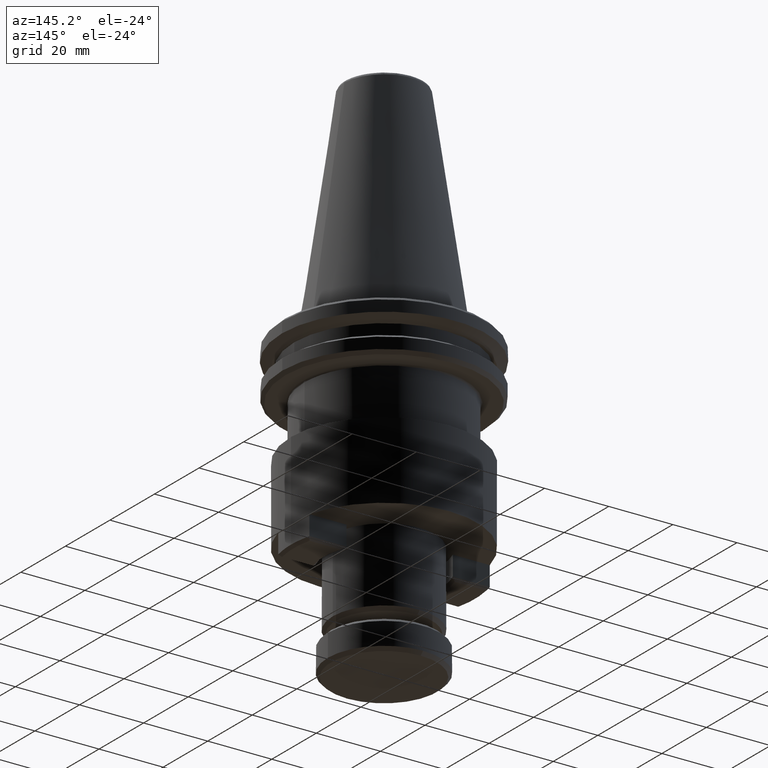
[diagram: clean part render]
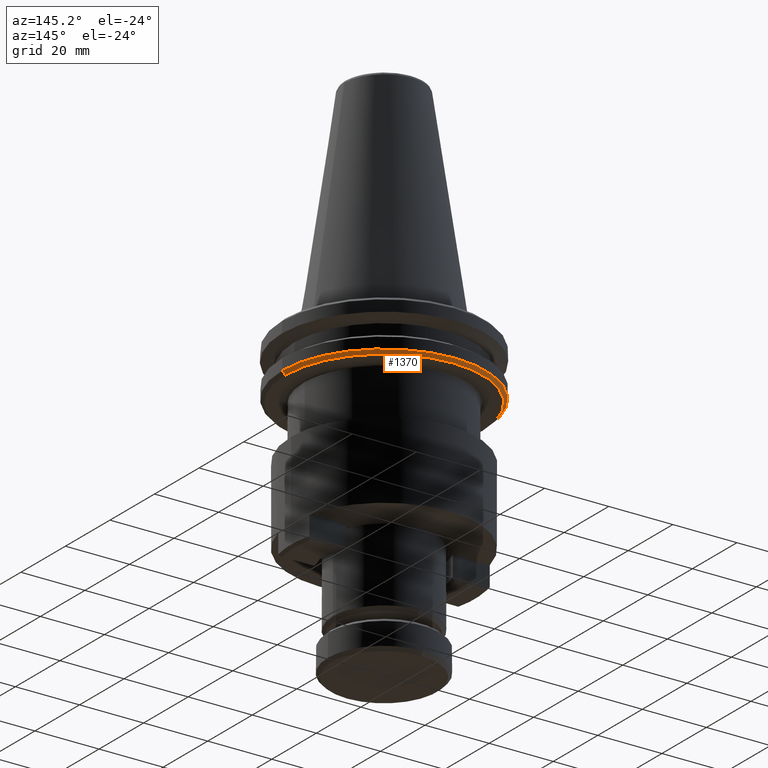
[diagram: same view with one face highlighted and labeled with its STEP entity id]
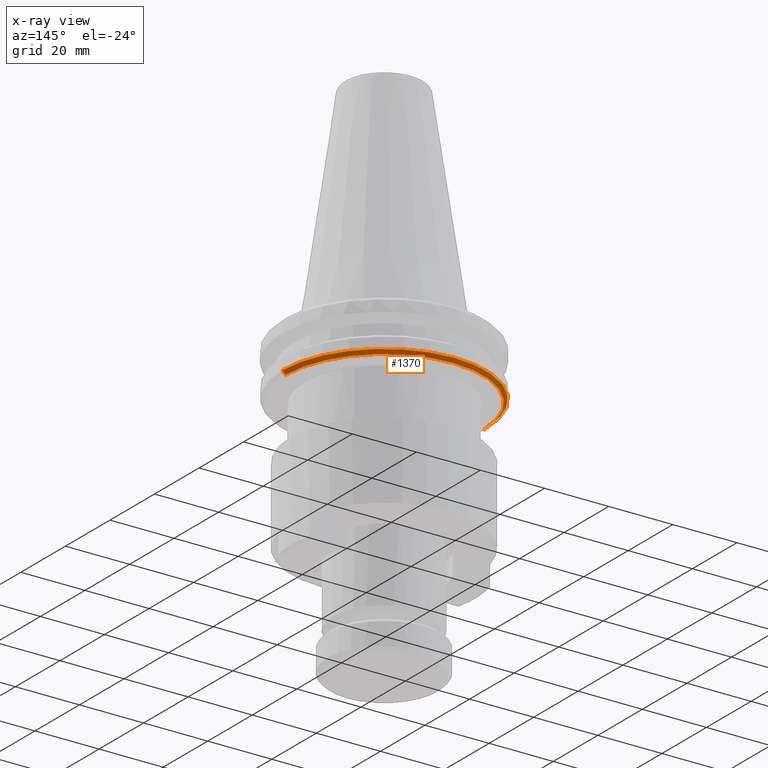
[diagram: x-ray of the same camera — body ghosted, the highlighted face saturated]
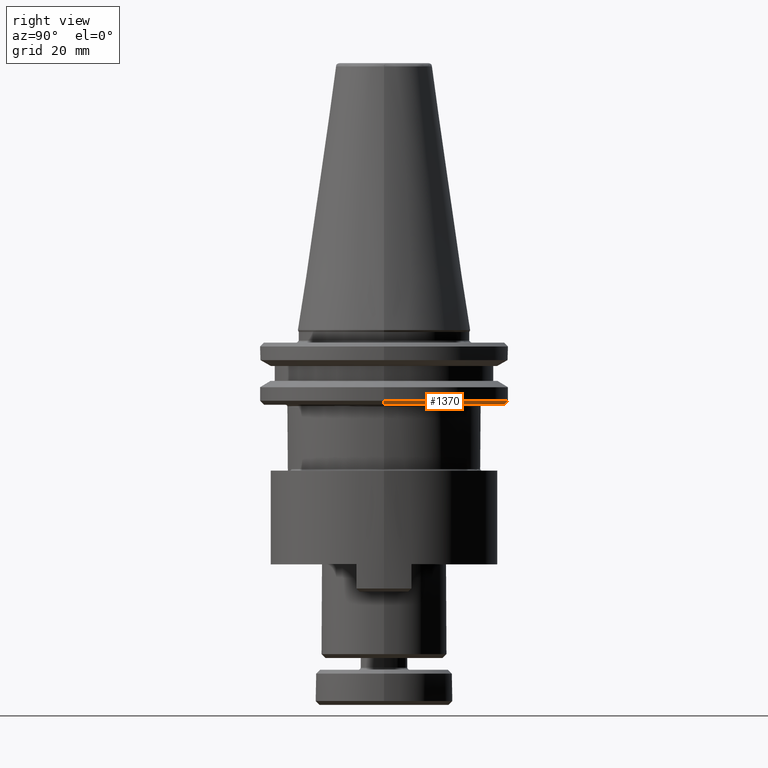
[diagram: same view with one face highlighted and labeled with its STEP entity id]
A machine part, auxiliary view. The second image highlights one B-rep face of the part: STEP entity #1370.
The next image is the same camera in x-ray: the body ghosted, the highlighted face saturated — about 0% of this face is hidden behind the body in this view.
A second angle (right view) of the same face is appended — the face is thin or edge-on in the first view.
In plain terms, the highlighted conical surface has half-angle 45 deg.
Its self-contained STEP definition (entity closure, byte-faithful):
#39 = EDGE_CURVE ( 'NONE', #808, #1851, #2872, .T. ) ;
#43 = DIRECTION ( 'NONE',  ( -0.0000000000000000000, 0.0000000000000000000, -1.000000000000000000 ) ) ;
#115 = EDGE_CURVE ( 'NONE', #1096, #2652, #2829, .T. ) ;
#287 = AXIS2_PLACEMENT_3D ( 'NONE', #559, #824, #1830 ) ;
#301 = AXIS2_PLACEMENT_3D ( 'NONE', #2291, #1673, #2648 ) ;
#389 = CIRCLE ( 'NONE', #2859, 30.74999999850318100 ) ;
#486 = CARTESIAN_POINT ( 'NONE',  ( 51.54877266015199700, 93.68607934060428000, 76.66398860121597600 ) ) ;
#559 = CARTESIAN_POINT ( 'NONE',  ( 82.29877265865518200, 93.68607934060428000, 77.66398860271280600 ) ) ;
#808 = VERTEX_POINT ( 'NONE', #486 ) ;
#815 = DIRECTION ( 'NONE',  ( 0.7071067811865463500, 0.0000000000000000000, 0.7071067811865487900 ) ) ;
#824 = DIRECTION ( 'NONE',  ( -5.463695987328526400E-017, 0.0000000000000000000, 1.000000000000000000 ) ) ;
#841 = EDGE_LOOP ( 'NONE', ( #1573, #1983, #1569, #2923 ) ) ;
#965 = EDGE_CURVE ( 'NONE', #2652, #1851, #1805, .T. ) ;
#1096 = VERTEX_POINT ( 'NONE', #2757 ) ;
#1359 = CONICAL_SURFACE ( 'NONE', #301, 31.75000000077188400, 0.7853981633974466100 ) ;
#1370 = ADVANCED_FACE ( 'NONE', ( #1388 ), #1359, .T. ) ;
#1388 = FACE_OUTER_BOUND ( 'NONE', #841, .T. ) ;
#1569 = ORIENTED_EDGE ( 'NONE', *, *, #965, .F. ) ;
#1573 = ORIENTED_EDGE ( 'NONE', *, *, #2500, .F. ) ;
#1660 = CARTESIAN_POINT ( 'NONE',  ( 82.29877265865518200, 93.68607934060428000, 76.66398860121597600 ) ) ;
#1673 = DIRECTION ( 'NONE',  ( 0.0000000000000000000, -0.0000000000000000000, 1.000000000000000000 ) ) ;
#1805 = CIRCLE ( 'NONE', #287, 31.75000000000000000 ) ;
#1830 = DIRECTION ( 'NONE',  ( 1.000000000000000000, 0.0000000000000000000, 0.0000000000000000000 ) ) ;
#1851 = VERTEX_POINT ( 'NONE', #3143 ) ;
#1914 = DIRECTION ( 'NONE',  ( 1.000000000000000000, 0.0000000000000000000, 0.0000000000000000000 ) ) ;
#1983 = ORIENTED_EDGE ( 'NONE', *, *, #39, .T. ) ;
#2170 = CARTESIAN_POINT ( 'NONE',  ( 50.54877265788329100, 93.68607934060428000, 77.66398860348469700 ) ) ;
#2291 = CARTESIAN_POINT ( 'NONE',  ( 82.29877265865518200, 93.68607934060428000, 77.66398860348469700 ) ) ;
#2500 = EDGE_CURVE ( 'NONE', #808, #1096, #389, .T. ) ;
#2648 = DIRECTION ( 'NONE',  ( 1.000000000000000000, 0.0000000000000000000, 0.0000000000000000000 ) ) ;
#2652 = VERTEX_POINT ( 'NONE', #3042 ) ;
#2757 = CARTESIAN_POINT ( 'NONE',  ( 113.0487726571583700, 93.68607934060428000, 76.66398860121597600 ) ) ;
#2816 = VECTOR ( 'NONE', #815, 1000.000000000000000 ) ;
#2829 = LINE ( 'NONE', #2861, #2816 ) ;
#2859 = AXIS2_PLACEMENT_3D ( 'NONE', #1660, #43, #1914 ) ;
#2861 = CARTESIAN_POINT ( 'NONE',  ( 114.0487726594270600, 93.68607934060428000, 77.66398860348469700 ) ) ;
#2872 = LINE ( 'NONE', #2170, #2886 ) ;
#2886 = VECTOR ( 'NONE', #3043, 1000.000000000000000 ) ;
#2923 = ORIENTED_EDGE ( 'NONE', *, *, #115, .F. ) ;
#3042 = CARTESIAN_POINT ( 'NONE',  ( 114.0487726586551700, 93.68607934060428000, 77.66398860271280600 ) ) ;
#3043 = DIRECTION ( 'NONE',  ( -0.7071067811865463500, 8.659560562354918100E-017, 0.7071067811865487900 ) ) ;
#3143 = CARTESIAN_POINT ( 'NONE',  ( 50.54877265865518200, 93.68607934060428000, 77.66398860271280600 ) ) ;